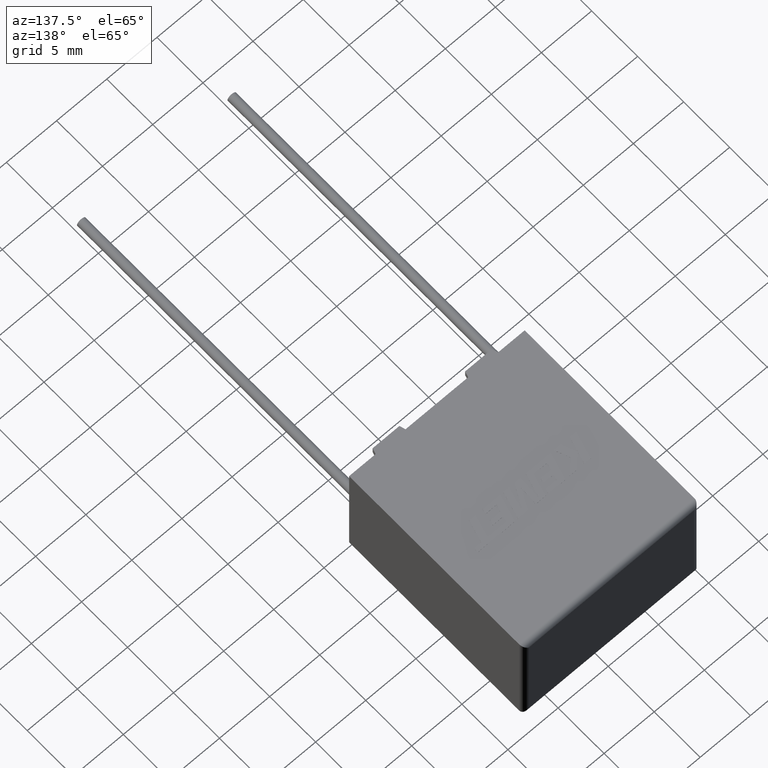
[diagram: clean part render]
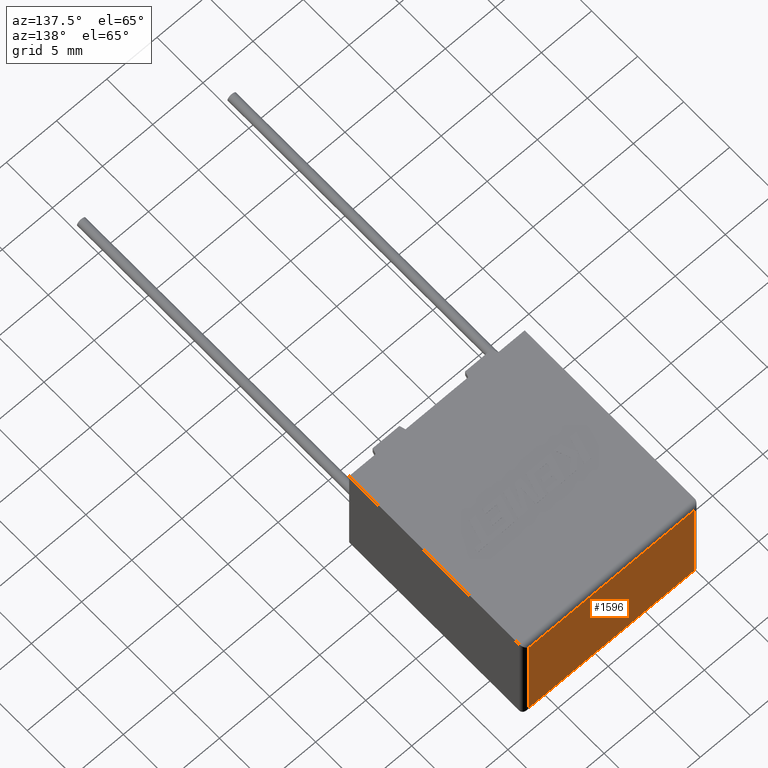
[diagram: same view with one face highlighted and labeled with its STEP entity id]
A machine part, auxiliary view. The second image highlights one B-rep face of the part: STEP entity #1596.
In plain terms, the highlighted planar face has unit normal (0, -1, 0).
Its self-contained STEP definition (entity closure, byte-faithful):
#347 = LINE ( 'NONE', #2767, #1532 ) ;
#373 = CARTESIAN_POINT ( 'NONE',  ( 17.00000000000000000, 19.00000000000000000, 11.50000000000000000 ) ) ;
#378 = CARTESIAN_POINT ( 'NONE',  ( 17.00000000000000000, 19.00000000000000000, 0.5000000000000004400 ) ) ;
#441 = CARTESIAN_POINT ( 'NONE',  ( 0.5000000000000000000, 19.00000000000000000, 11.50000000000000000 ) ) ;
#451 = CARTESIAN_POINT ( 'NONE',  ( 0.5000000000000000000, 19.00000000000000000, 11.00000000000000000 ) ) ;
#518 = AXIS2_PLACEMENT_3D ( 'NONE', #930, #1457, #2246 ) ;
#532 = VERTEX_POINT ( 'NONE', #451 ) ;
#552 = LINE ( 'NONE', #373, #808 ) ;
#555 = EDGE_CURVE ( 'NONE', #532, #614, #1845, .T. ) ;
#604 = VECTOR ( 'NONE', #1663, 1000.000000000000000 ) ;
#614 = VERTEX_POINT ( 'NONE', #1022 ) ;
#681 = CARTESIAN_POINT ( 'NONE',  ( 0.5000000000000000000, 19.00000000000000000, 0.5000000000000004400 ) ) ;
#691 = CARTESIAN_POINT ( 'NONE',  ( 0.0000000000000000000, 19.00000000000000000, 11.00000000000000000 ) ) ;
#808 = VECTOR ( 'NONE', #2869, 1000.000000000000000 ) ;
#827 = FACE_OUTER_BOUND ( 'NONE', #853, .T. ) ;
#853 = EDGE_LOOP ( 'NONE', ( #1126, #2257, #2345, #900 ) ) ;
#900 = ORIENTED_EDGE ( 'NONE', *, *, #1575, .T. ) ;
#930 = CARTESIAN_POINT ( 'NONE',  ( 0.0000000000000000000, 19.00000000000000000, 11.50000000000000000 ) ) ;
#996 = EDGE_CURVE ( 'NONE', #614, #2576, #552, .T. ) ;
#1022 = CARTESIAN_POINT ( 'NONE',  ( 17.00000000000000000, 19.00000000000000000, 11.00000000000000000 ) ) ;
#1126 = ORIENTED_EDGE ( 'NONE', *, *, #555, .T. ) ;
#1457 = DIRECTION ( 'NONE',  ( 0.0000000000000000000, -1.000000000000000000, 0.0000000000000000000 ) ) ;
#1532 = VECTOR ( 'NONE', #3022, 1000.000000000000000 ) ;
#1575 = EDGE_CURVE ( 'NONE', #2175, #532, #2410, .T. ) ;
#1596 = ADVANCED_FACE ( 'NONE', ( #827 ), #2451, .F. ) ;
#1663 = DIRECTION ( 'NONE',  ( -0.0000000000000000000, -0.0000000000000000000, 1.000000000000000000 ) ) ;
#1709 = DIRECTION ( 'NONE',  ( 1.000000000000000000, -0.0000000000000000000, -0.0000000000000000000 ) ) ;
#1845 = LINE ( 'NONE', #691, #1849 ) ;
#1849 = VECTOR ( 'NONE', #1709, 1000.000000000000000 ) ;
#2175 = VERTEX_POINT ( 'NONE', #681 ) ;
#2246 = DIRECTION ( 'NONE',  ( 0.0000000000000000000, -0.0000000000000000000, -1.000000000000000000 ) ) ;
#2257 = ORIENTED_EDGE ( 'NONE', *, *, #996, .T. ) ;
#2345 = ORIENTED_EDGE ( 'NONE', *, *, #3007, .T. ) ;
#2410 = LINE ( 'NONE', #441, #604 ) ;
#2451 = PLANE ( 'NONE',  #518 ) ;
#2576 = VERTEX_POINT ( 'NONE', #378 ) ;
#2767 = CARTESIAN_POINT ( 'NONE',  ( 0.0000000000000000000, 19.00000000000000000, 0.5000000000000004400 ) ) ;
#2869 = DIRECTION ( 'NONE',  ( 0.0000000000000000000, 0.0000000000000000000, -1.000000000000000000 ) ) ;
#3007 = EDGE_CURVE ( 'NONE', #2576, #2175, #347, .T. ) ;
#3022 = DIRECTION ( 'NONE',  ( -1.000000000000000000, 0.0000000000000000000, 0.0000000000000000000 ) ) ;